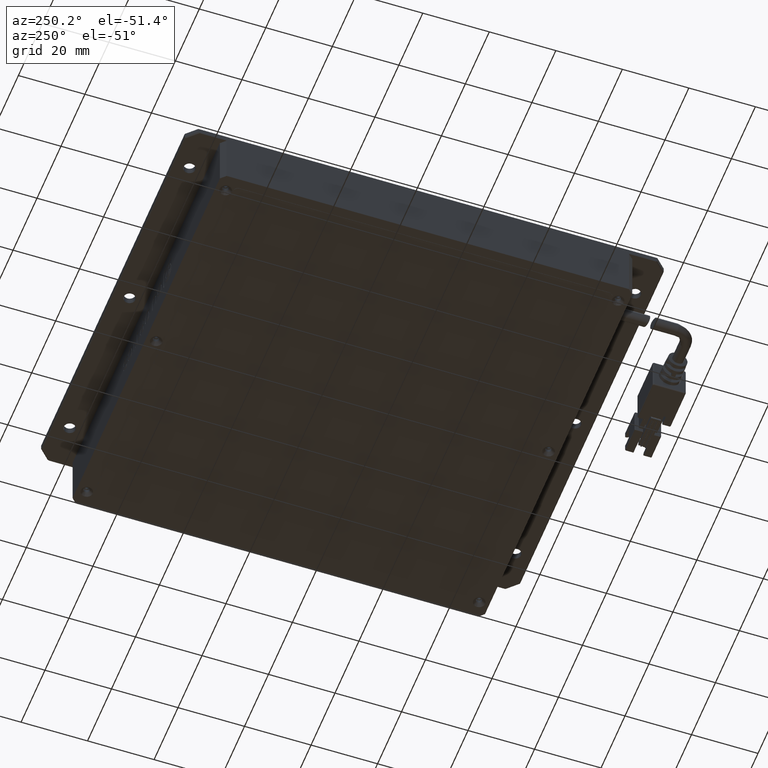
[diagram: clean part render]
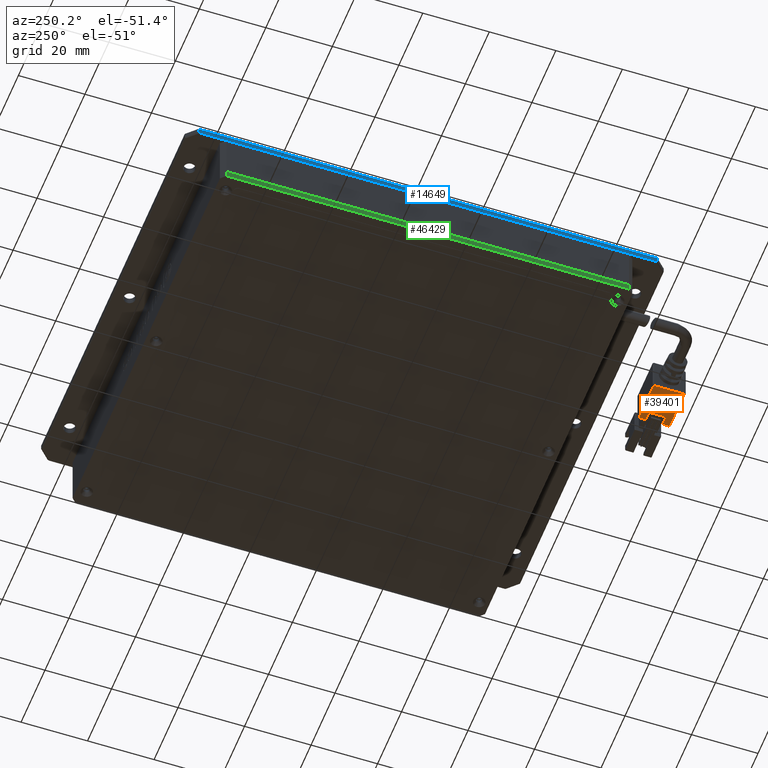
[diagram: same view with three faces highlighted in distinct colors, each labeled with its STEP entity id]
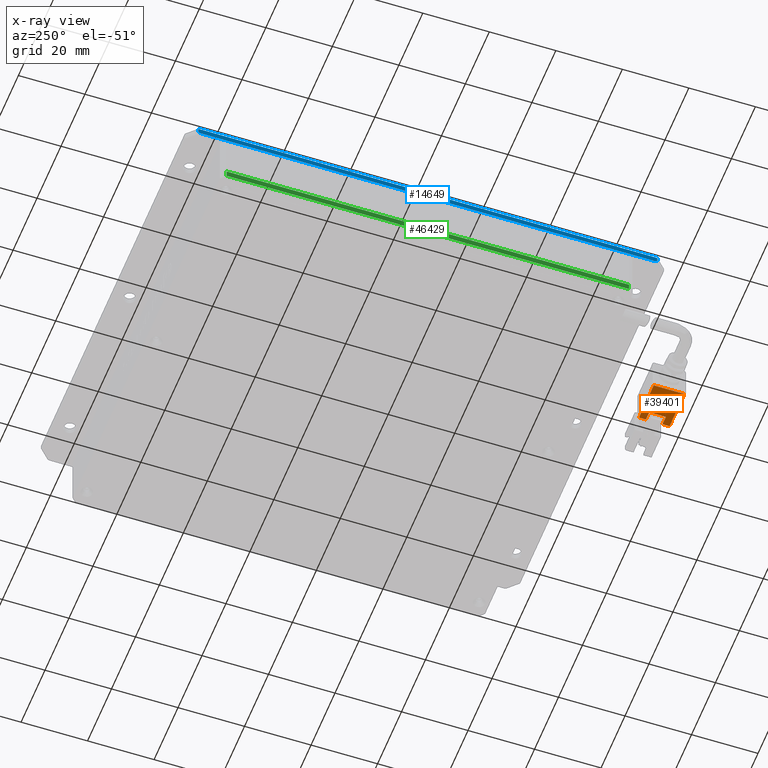
[diagram: x-ray of the same camera — body ghosted, the three highlighted faces saturated]
A machine part, auxiliary view with three faces highlighted in distinct colors.
The next image is the same camera in x-ray (body ghosted, the three faces saturated) — at least one of them is partly hidden behind the body in this view.
Their STEP definitions:

[orange] entity #39401 — the highlighted planar face has unit normal (-0, -0, 1).
#1294 = LINE ( 'NONE', #28307, #19587 ) ;
#1440 = CARTESIAN_POINT ( 'NONE',  ( -13.55509736540662400, -72.61034746086289700, 7.299999999983640500 ) ) ;
#2154 = EDGE_CURVE ( 'NONE', #63331, #39522, #59292, .T. ) ;
#4497 = LINE ( 'NONE', #40814, #64311 ) ;
#4498 = DIRECTION ( 'NONE',  ( 1.000000000000000000, -6.162975822039154700E-033, 5.345529420184391300E-049 ) ) ;
#5822 = LINE ( 'NONE', #40887, #79107 ) ;
#8758 = AXIS2_PLACEMENT_3D ( 'NONE', #82060, #35189, #89939 ) ;
#9518 = VERTEX_POINT ( 'NONE', #19706 ) ;
#10345 = CARTESIAN_POINT ( 'NONE',  ( -16.35509736540662500, -77.61034746086289700, 7.299999999983639600 ) ) ;
#11217 = VERTEX_POINT ( 'NONE', #1440 ) ;
#11354 = ORIENTED_EDGE ( 'NONE', *, *, #12427, .F. ) ;
#12427 = EDGE_CURVE ( 'NONE', #39522, #11217, #4497, .T. ) ;
#13370 = ORIENTED_EDGE ( 'NONE', *, *, #93136, .F. ) ;
#19587 = VECTOR ( 'NONE', #90893, 1000.000000000000000 ) ;
#19706 = CARTESIAN_POINT ( 'NONE',  ( -13.55509736540662400, -77.61034746086289700, 7.299999999983639600 ) ) ;
#21444 = EDGE_CURVE ( 'NONE', #36155, #87106, #56053, .T. ) ;
#28307 = CARTESIAN_POINT ( 'NONE',  ( -13.35509736540662100, -77.61034746086289700, 7.299999999983639600 ) ) ;
#31653 = CARTESIAN_POINT ( 'NONE',  ( -25.95509736540662300, -70.51034746086288900, 7.299999999983640500 ) ) ;
#32977 = CARTESIAN_POINT ( 'NONE',  ( -13.55509736540662400, -70.51034746086288900, 7.299999999983640500 ) ) ;
#34500 = ORIENTED_EDGE ( 'NONE', *, *, #21444, .F. ) ;
#35114 = EDGE_CURVE ( 'NONE', #54678, #36866, #57302, .T. ) ;
#35189 = DIRECTION ( 'NONE',  ( -5.345529420184392100E-049, -1.232595164407830900E-032, 1.000000000000000000 ) ) ;
#35731 = LINE ( 'NONE', #52724, #56467 ) ;
#36155 = VERTEX_POINT ( 'NONE', #32977 ) ;
#36866 = VERTEX_POINT ( 'NONE', #66225 ) ;
#39401 = ADVANCED_FACE ( 'NONE', ( #40988 ), #50595, .F. ) ;
#39522 = VERTEX_POINT ( 'NONE', #51612 ) ;
#40814 = CARTESIAN_POINT ( 'NONE',  ( -13.35509736540662100, -72.61034746086289700, 7.299999999983640500 ) ) ;
#40887 = CARTESIAN_POINT ( 'NONE',  ( -13.55509736540662400, -70.11034746086289700, 7.299999999983639600 ) ) ;
#40988 = FACE_OUTER_BOUND ( 'NONE', #42326, .T. ) ;
#42326 = EDGE_LOOP ( 'NONE', ( #13370, #11354, #92451, #91746, #81508, #83882, #69793, #34500 ) ) ;
#42521 = CARTESIAN_POINT ( 'NONE',  ( -13.35509736540662100, -70.51034746086288900, 7.299999999983640500 ) ) ;
#46301 = CARTESIAN_POINT ( 'NONE',  ( -16.35509736540662500, -70.11034746086289700, 7.299999999983639600 ) ) ;
#48852 = VECTOR ( 'NONE', #53084, 1000.000000000000000 ) ;
#49642 = CARTESIAN_POINT ( 'NONE',  ( -25.95509736540662300, -79.71034746086289100, 7.299999999983638700 ) ) ;
#50595 = PLANE ( 'NONE',  #8758 ) ;
#51274 = CARTESIAN_POINT ( 'NONE',  ( -13.35509736540662100, -79.71034746086289100, 7.299999999983638700 ) ) ;
#51612 = CARTESIAN_POINT ( 'NONE',  ( -16.35509736540662500, -72.61034746086289700, 7.299999999983640500 ) ) ;
#52724 = CARTESIAN_POINT ( 'NONE',  ( -13.55509736540662400, -70.11034746086289700, 7.299999999983639600 ) ) ;
#53084 = DIRECTION ( 'NONE',  ( -6.162975822039154700E-033, -1.000000000000000000, -1.232595164407830900E-032 ) ) ;
#54678 = VERTEX_POINT ( 'NONE', #49642 ) ;
#56053 = LINE ( 'NONE', #42521, #74427 ) ;
#56467 = VECTOR ( 'NONE', #60528, 1000.000000000000000 ) ;
#56805 = DIRECTION ( 'NONE',  ( 1.000000000000000000, -6.162975822039154700E-033, 5.345529420184391300E-049 ) ) ;
#57302 = LINE ( 'NONE', #51274, #98996 ) ;
#59292 = LINE ( 'NONE', #46301, #98513 ) ;
#60528 = DIRECTION ( 'NONE',  ( 6.162975822039154700E-033, 1.000000000000000000, 1.232595164407830900E-032 ) ) ;
#60562 = CARTESIAN_POINT ( 'NONE',  ( -25.95509736540662600, -70.11034746086289700, 7.299999999983639600 ) ) ;
#63331 = VERTEX_POINT ( 'NONE', #10345 ) ;
#64311 = VECTOR ( 'NONE', #56805, 1000.000000000000000 ) ;
#66225 = CARTESIAN_POINT ( 'NONE',  ( -13.55509736540662400, -79.71034746086289100, 7.299999999983638700 ) ) ;
#69548 = LINE ( 'NONE', #60562, #48852 ) ;
#69687 = EDGE_CURVE ( 'NONE', #87106, #54678, #69548, .T. ) ;
#69793 = ORIENTED_EDGE ( 'NONE', *, *, #69687, .F. ) ;
#70250 = EDGE_CURVE ( 'NONE', #36866, #9518, #5822, .T. ) ;
#74427 = VECTOR ( 'NONE', #81843, 1000.000000000000000 ) ;
#79107 = VECTOR ( 'NONE', #87748, 1000.000000000000000 ) ;
#81508 = ORIENTED_EDGE ( 'NONE', *, *, #70250, .F. ) ;
#81843 = DIRECTION ( 'NONE',  ( -1.000000000000000000, 6.162975822039154700E-033, -5.345529420184391300E-049 ) ) ;
#82060 = CARTESIAN_POINT ( 'NONE',  ( -13.35509736540662100, -70.11034746086289700, 7.299999999983639600 ) ) ;
#83882 = ORIENTED_EDGE ( 'NONE', *, *, #35114, .F. ) ;
#87106 = VERTEX_POINT ( 'NONE', #31653 ) ;
#87748 = DIRECTION ( 'NONE',  ( 6.162975822039154700E-033, 1.000000000000000000, 1.232595164407830900E-032 ) ) ;
#88912 = EDGE_CURVE ( 'NONE', #9518, #63331, #1294, .T. ) ;
#89939 = DIRECTION ( 'NONE',  ( -6.162975822039154700E-033, -1.000000000000000000, -1.232595164407830900E-032 ) ) ;
#90893 = DIRECTION ( 'NONE',  ( -1.000000000000000000, 6.162975822039154700E-033, -5.345529420184391300E-049 ) ) ;
#91746 = ORIENTED_EDGE ( 'NONE', *, *, #88912, .F. ) ;
#92451 = ORIENTED_EDGE ( 'NONE', *, *, #2154, .F. ) ;
#93136 = EDGE_CURVE ( 'NONE', #11217, #36155, #35731, .T. ) ;
#98513 = VECTOR ( 'NONE', #101015, 1000.000000000000000 ) ;
#98996 = VECTOR ( 'NONE', #4498, 1000.000000000000000 ) ;
#101015 = DIRECTION ( 'NONE',  ( 6.162975822039154700E-033, 1.000000000000000000, 1.232595164407830900E-032 ) ) ;

[blue] entity #14649 — the highlighted planar face has unit normal (1, 0, 0).
#660 = LINE ( 'NONE', #18556, #81335 ) ;
#3875 = DIRECTION ( 'NONE',  ( -0.0000000000000000000, -0.0000000000000000000, 1.000000000000000000 ) ) ;
#4093 = VERTEX_POINT ( 'NONE', #6718 ) ;
#4521 = VERTEX_POINT ( 'NONE', #74248 ) ;
#5603 = CARTESIAN_POINT ( 'NONE',  ( -63.35509736540663500, 79.46538847042531000, 13.99999999998362700 ) ) ;
#6718 = CARTESIAN_POINT ( 'NONE',  ( -63.35509736540663500, 79.88965253913721700, 14.29999999998359300 ) ) ;
#7299 = CARTESIAN_POINT ( 'NONE',  ( -63.35509736540663500, -57.68608339215089800, 13.99999999998363800 ) ) ;
#9195 = ORIENTED_EDGE ( 'NONE', *, *, #101363, .F. ) ;
#11355 = CARTESIAN_POINT ( 'NONE',  ( -63.35509736540663500, 79.88965253913721700, 15.99999999998363100 ) ) ;
#13430 = DIRECTION ( 'NONE',  ( 2.096980794070746400E-014, 0.8164965809277304800, 0.5773502691896194000 ) ) ;
#14649 = ADVANCED_FACE ( 'NONE', ( #63501 ), #68899, .F. ) ;
#17163 = EDGE_LOOP ( 'NONE', ( #9195, #95851, #92467, #75722, #27860, #20788 ) ) ;
#18556 = CARTESIAN_POINT ( 'NONE',  ( -63.35509736540663500, -58.11034746086279100, 14.29999999998363200 ) ) ;
#20788 = ORIENTED_EDGE ( 'NONE', *, *, #72533, .F. ) ;
#21934 = DIRECTION ( 'NONE',  ( 0.0000000000000000000, 1.000000000000000000, 0.0000000000000000000 ) ) ;
#22565 = VERTEX_POINT ( 'NONE', #7299 ) ;
#24723 = VECTOR ( 'NONE', #21934, 1000.000000000000000 ) ;
#27860 = ORIENTED_EDGE ( 'NONE', *, *, #91461, .F. ) ;
#29793 = CARTESIAN_POINT ( 'NONE',  ( -63.35509736540663500, 82.88965253913721700, 13.99999999998362900 ) ) ;
#31063 = CARTESIAN_POINT ( 'NONE',  ( -63.35509736540663500, 79.88965253913721700, 15.69999999998360200 ) ) ;
#33372 = DIRECTION ( 'NONE',  ( 0.0000000000000000000, -1.000000000000000000, -0.0000000000000000000 ) ) ;
#38274 = VERTEX_POINT ( 'NONE', #49815 ) ;
#42498 = EDGE_CURVE ( 'NONE', #38274, #94423, #78645, .T. ) ;
#46186 = DIRECTION ( 'NONE',  ( 0.0000000000000000000, -0.0000000000000000000, 1.000000000000000000 ) ) ;
#46763 = CARTESIAN_POINT ( 'NONE',  ( -63.35509736540663500, -61.11034746086279800, 15.99999999998363100 ) ) ;
#49617 = CARTESIAN_POINT ( 'NONE',  ( -63.35509736540663500, -58.11034746086279100, 15.69999999998361200 ) ) ;
#49815 = CARTESIAN_POINT ( 'NONE',  ( -63.35509736540663500, -58.11034746086279800, 14.29999999998362800 ) ) ;
#50020 = DIRECTION ( 'NONE',  ( 0.0000000000000000000, 0.8164965809277172600, -0.5773502691896380500 ) ) ;
#54018 = LINE ( 'NONE', #5603, #93187 ) ;
#54577 = DIRECTION ( 'NONE',  ( 0.0000000000000000000, 0.0000000000000000000, -1.000000000000000000 ) ) ;
#56507 = EDGE_CURVE ( 'NONE', #70094, #94423, #87132, .T. ) ;
#61579 = LINE ( 'NONE', #11355, #79965 ) ;
#63501 = FACE_OUTER_BOUND ( 'NONE', #17163, .T. ) ;
#66204 = VECTOR ( 'NONE', #33372, 1000.000000000000000 ) ;
#66660 = AXIS2_PLACEMENT_3D ( 'NONE', #46763, #101446, #54577 ) ;
#68899 = PLANE ( 'NONE',  #66660 ) ;
#70094 = VERTEX_POINT ( 'NONE', #31063 ) ;
#72533 = EDGE_CURVE ( 'NONE', #22565, #4521, #84660, .T. ) ;
#74248 = CARTESIAN_POINT ( 'NONE',  ( -63.35509736540663500, 79.46538847042533900, 13.99999999998363600 ) ) ;
#75722 = ORIENTED_EDGE ( 'NONE', *, *, #80866, .F. ) ;
#78645 = LINE ( 'NONE', #85195, #97063 ) ;
#79965 = VECTOR ( 'NONE', #3875, 1000.000000000000000 ) ;
#80866 = EDGE_CURVE ( 'NONE', #4093, #70094, #61579, .T. ) ;
#81335 = VECTOR ( 'NONE', #50020, 1000.000000000000200 ) ;
#84660 = LINE ( 'NONE', #29793, #24723 ) ;
#85195 = CARTESIAN_POINT ( 'NONE',  ( -63.35509736540663500, -58.11034746086279100, 15.99999999998363100 ) ) ;
#87132 = LINE ( 'NONE', #88062, #66204 ) ;
#88062 = CARTESIAN_POINT ( 'NONE',  ( -63.35509736540663500, -61.11034746086279800, 15.69999999998360900 ) ) ;
#91461 = EDGE_CURVE ( 'NONE', #4521, #4093, #54018, .T. ) ;
#92467 = ORIENTED_EDGE ( 'NONE', *, *, #56507, .F. ) ;
#93187 = VECTOR ( 'NONE', #13430, 1000.000000000000200 ) ;
#94423 = VERTEX_POINT ( 'NONE', #49617 ) ;
#95851 = ORIENTED_EDGE ( 'NONE', *, *, #42498, .T. ) ;
#97063 = VECTOR ( 'NONE', #46186, 1000.000000000000000 ) ;
#101363 = EDGE_CURVE ( 'NONE', #38274, #22565, #660, .T. ) ;
#101446 = DIRECTION ( 'NONE',  ( 1.000000000000000000, 0.0000000000000000000, 0.0000000000000000000 ) ) ;

[green] entity #46429 — the highlighted planar face has unit normal (1, -0, 0).
#5629 = DIRECTION ( 'NONE',  ( 2.220446049250313100E-016, 1.000000000000000000, 0.0000000000000000000 ) ) ;
#6577 = VECTOR ( 'NONE', #79715, 1000.000000000000000 ) ;
#8934 = CARTESIAN_POINT ( 'NONE',  ( -63.35509736540663500, 71.38965253913708900, -2.000000000016370500 ) ) ;
#14787 = ORIENTED_EDGE ( 'NONE', *, *, #46401, .F. ) ;
#16771 = DIRECTION ( 'NONE',  ( -0.0000000000000000000, -0.0000000000000000000, 1.000000000000000000 ) ) ;
#18194 = DIRECTION ( 'NONE',  ( 1.000000000000000000, -2.220446049250313100E-016, 0.0000000000000000000 ) ) ;
#18848 = LINE ( 'NONE', #28828, #99577 ) ;
#23489 = VERTEX_POINT ( 'NONE', #42284 ) ;
#25398 = CARTESIAN_POINT ( 'NONE',  ( -63.35509736540666400, -49.61034746086286900, -2.000000000016370500 ) ) ;
#28828 = CARTESIAN_POINT ( 'NONE',  ( -63.35509736540666400, -51.11034746086286900, -2.000000000016370500 ) ) ;
#31583 = VERTEX_POINT ( 'NONE', #98974 ) ;
#36564 = CARTESIAN_POINT ( 'NONE',  ( -63.35509736540663500, 71.38965253913708900, -1.637058544279312900E-011 ) ) ;
#37461 = FACE_OUTER_BOUND ( 'NONE', #95636, .T. ) ;
#38029 = LINE ( 'NONE', #8934, #77121 ) ;
#42284 = CARTESIAN_POINT ( 'NONE',  ( -63.35509736540666400, -49.61034746086285500, -1.637036860235863100E-011 ) ) ;
#42387 = LINE ( 'NONE', #87961, #99884 ) ;
#43302 = ORIENTED_EDGE ( 'NONE', *, *, #72699, .F. ) ;
#46401 = EDGE_CURVE ( 'NONE', #96204, #23489, #42387, .T. ) ;
#46429 = ADVANCED_FACE ( 'NONE', ( #37461 ), #80381, .F. ) ;
#49001 = DIRECTION ( 'NONE',  ( -2.220446049250313100E-016, -1.000000000000000000, -0.0000000000000000000 ) ) ;
#52239 = VERTEX_POINT ( 'NONE', #80171 ) ;
#54614 = EDGE_CURVE ( 'NONE', #52239, #23489, #68836, .T. ) ;
#64103 = ORIENTED_EDGE ( 'NONE', *, *, #80537, .F. ) ;
#64977 = CARTESIAN_POINT ( 'NONE',  ( -63.35509736540666400, -51.11034746086286900, -2.000000000016370500 ) ) ;
#67676 = AXIS2_PLACEMENT_3D ( 'NONE', #64977, #18194, #72841 ) ;
#68836 = LINE ( 'NONE', #25398, #6577 ) ;
#72699 = EDGE_CURVE ( 'NONE', #31583, #96204, #38029, .T. ) ;
#72841 = DIRECTION ( 'NONE',  ( 0.0000000000000000000, 0.0000000000000000000, -1.000000000000000000 ) ) ;
#77121 = VECTOR ( 'NONE', #16771, 1000.000000000000000 ) ;
#79715 = DIRECTION ( 'NONE',  ( -0.0000000000000000000, -0.0000000000000000000, 1.000000000000000000 ) ) ;
#80171 = CARTESIAN_POINT ( 'NONE',  ( -63.35509736540666400, -49.61034746086287600, -2.000000000016370500 ) ) ;
#80381 = PLANE ( 'NONE',  #67676 ) ;
#80537 = EDGE_CURVE ( 'NONE', #52239, #31583, #18848, .T. ) ;
#87961 = CARTESIAN_POINT ( 'NONE',  ( -63.35509736540663500, 72.88965253913711700, -1.637058544279312900E-011 ) ) ;
#89323 = ORIENTED_EDGE ( 'NONE', *, *, #54614, .T. ) ;
#95636 = EDGE_LOOP ( 'NONE', ( #43302, #64103, #89323, #14787 ) ) ;
#96204 = VERTEX_POINT ( 'NONE', #36564 ) ;
#98974 = CARTESIAN_POINT ( 'NONE',  ( -63.35509736540663500, 71.38965253913708900, -2.000000000016370500 ) ) ;
#99577 = VECTOR ( 'NONE', #5629, 1000.000000000000000 ) ;
#99884 = VECTOR ( 'NONE', #49001, 1000.000000000000000 ) ;